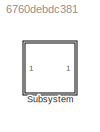
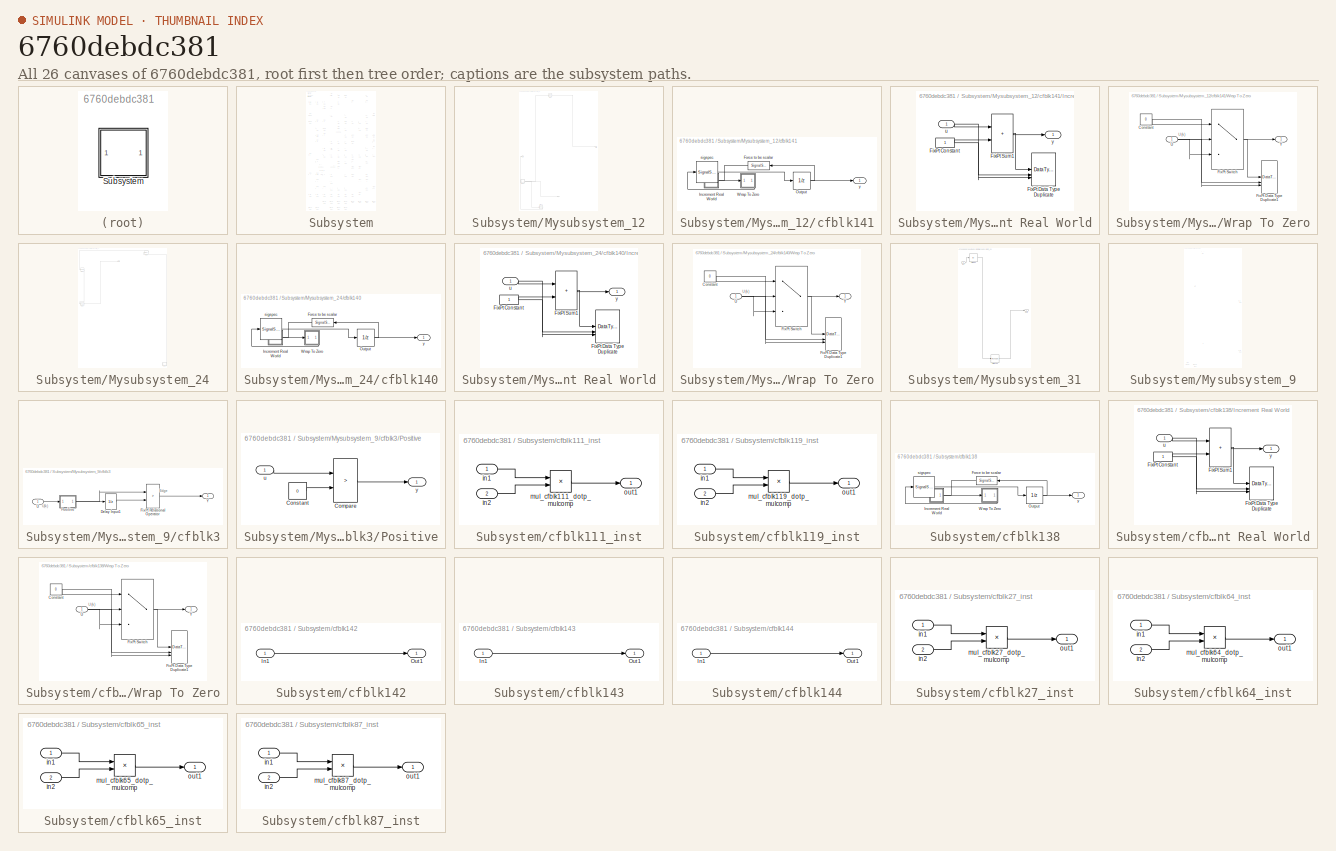
[diagram: thumbnail index - all 26 canvases of the model, root first then tree order]
MODEL slx_6760debdc381
KIND model
CONFIG AbsTol = auto
CONFIG EnableMultiTasking = off
CONFIG FixedStep = auto
CONFIG MaxStep = auto
CONFIG MinStep = auto
CONFIG RelTol = 1e-3
CONFIG SampleTimeConstraint = Unconstrained
CONFIG SolverName = VariableStepAuto
CONFIG StartTime = 0.0
CONFIG StopTime = 10.0
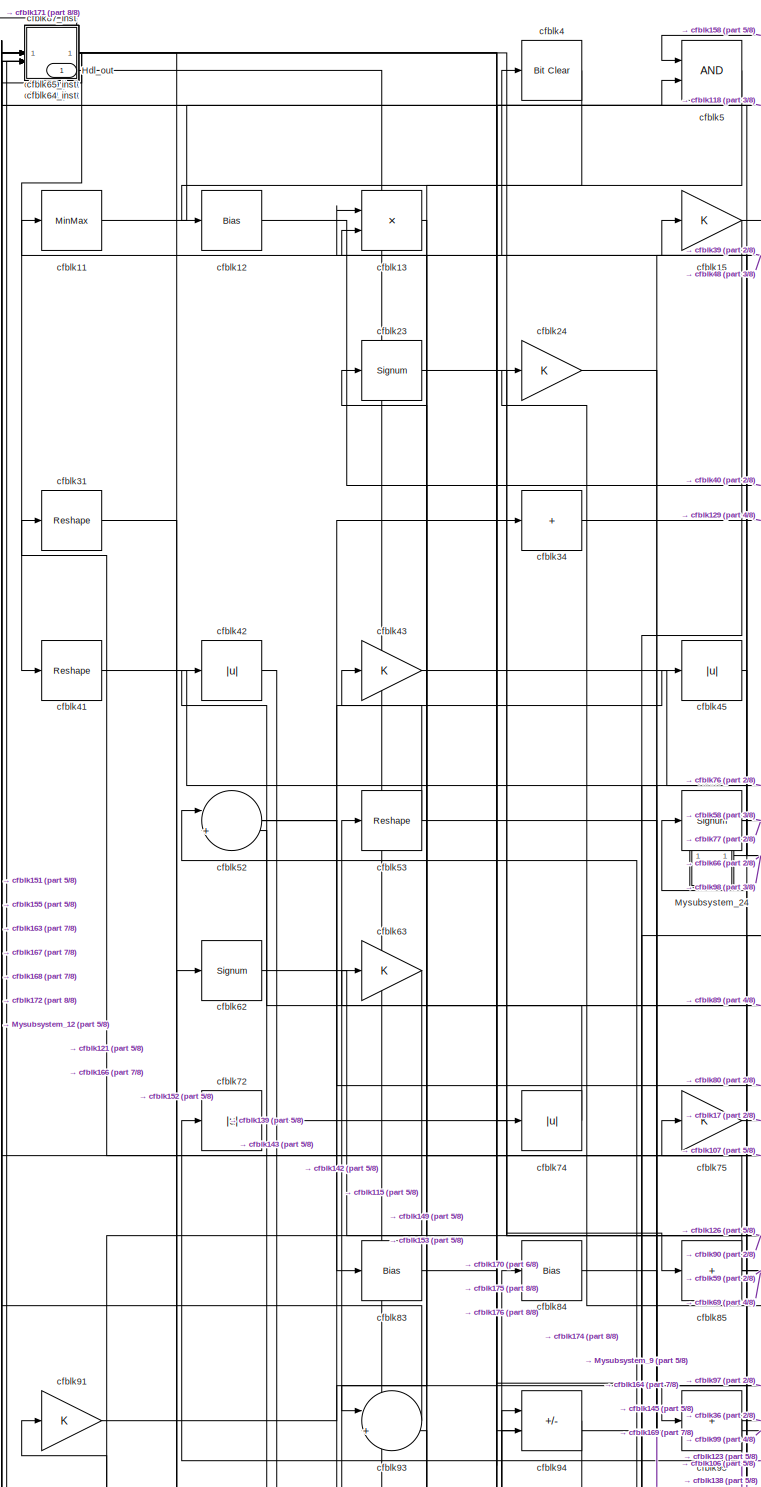
[diagram: Subsystem - part 1/8, top left region]
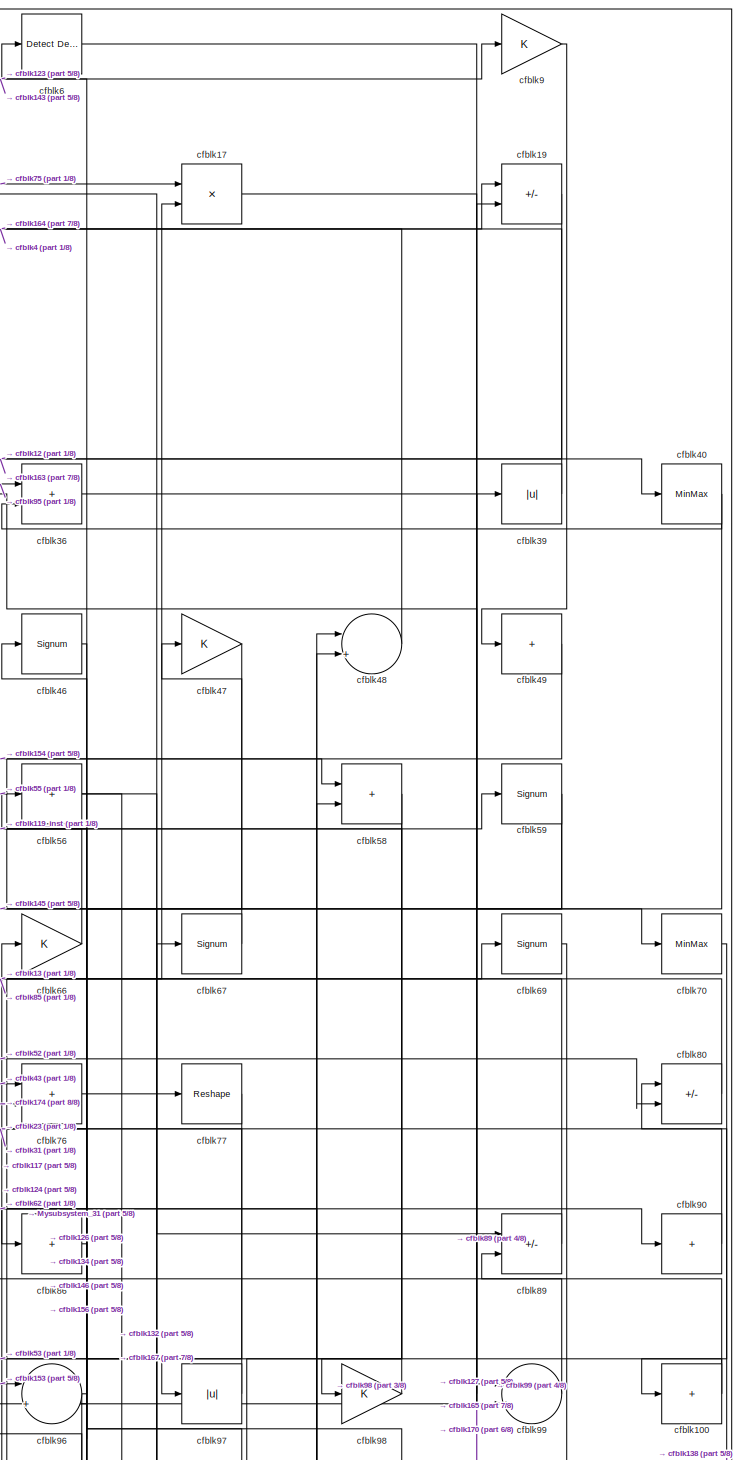
[diagram: Subsystem - part 2/8, top right region]
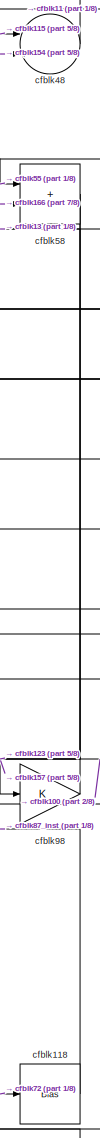
[diagram: Subsystem - part 3/8, middle right region]
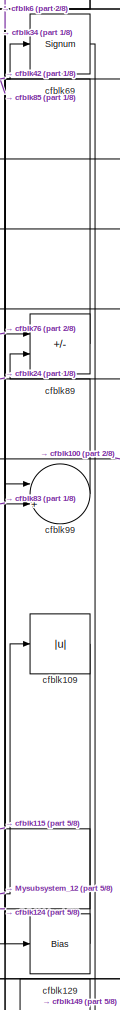
[diagram: Subsystem - part 4/8, middle right region]
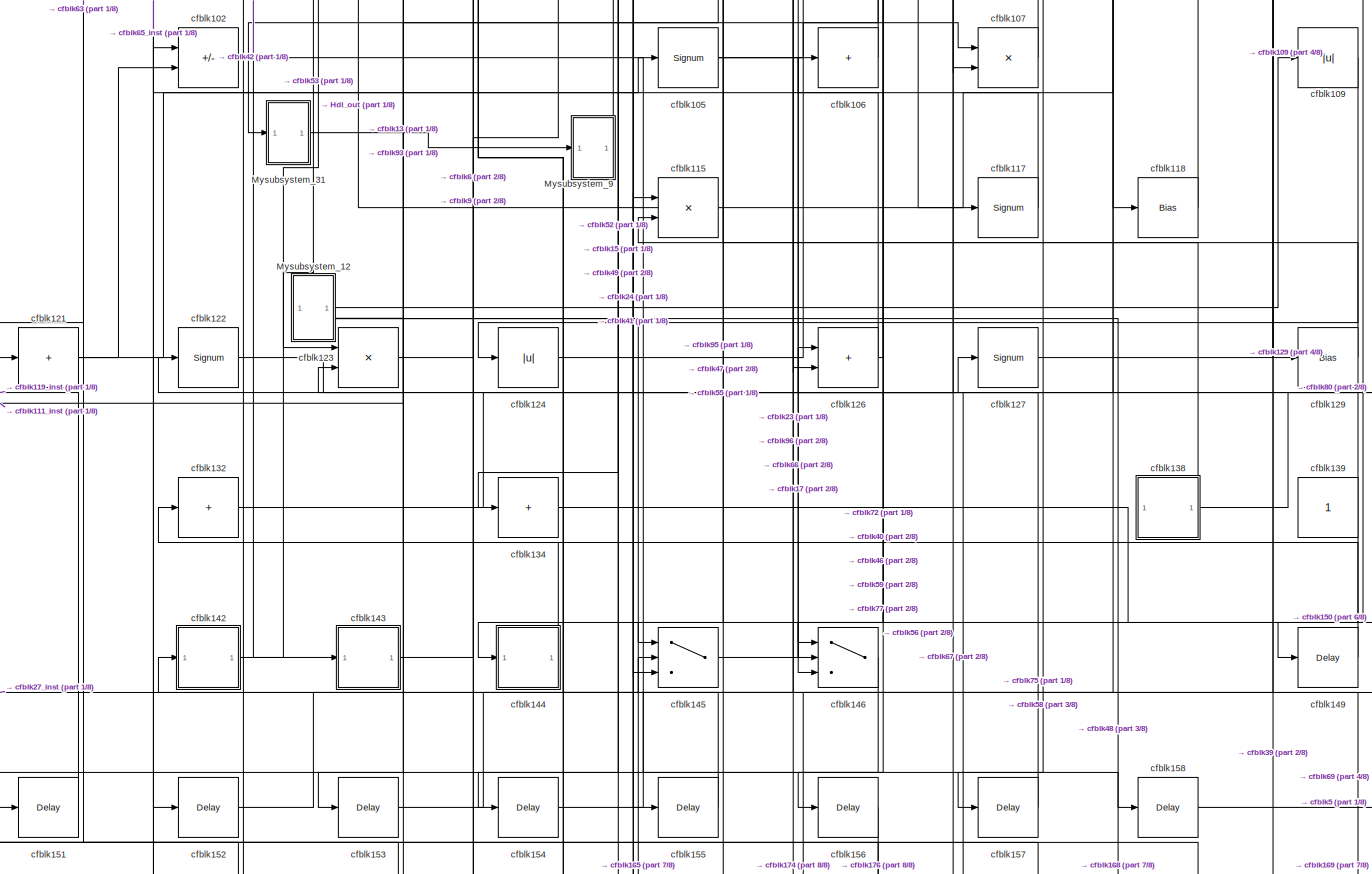
[diagram: Subsystem - part 5/8, full width, bottom band]
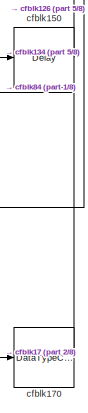
[diagram: Subsystem - part 6/8, bottom right region]
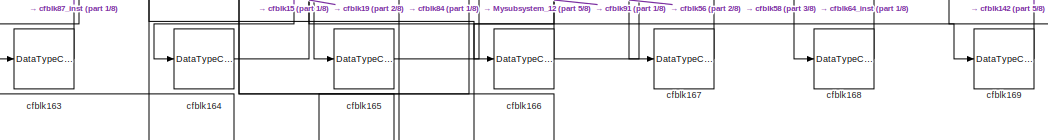
[diagram: Subsystem - part 7/8, bottom center region]
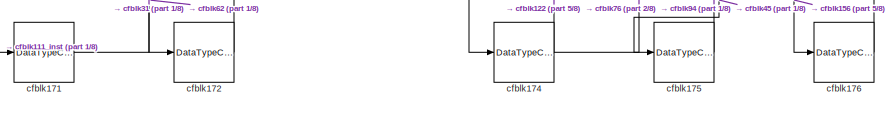
[diagram: Subsystem - part 8/8, bottom left region]
BLOCK [SubSystem] Subsystem
BLOCK [Outport] Subsystem/Hdl_out
  OutDataTypeStr = uint8
  SampleTime = 1
BLOCK [SubSystem] Subsystem/Mysubsystem_12
BLOCK [Outport] Subsystem/Mysubsystem_12/Out1
  SampleTime = 1
BLOCK [Outport] Subsystem/Mysubsystem_12/Out2
  Port = 2
  SampleTime = 1
BLOCK [SubSystem] Subsystem/Mysubsystem_12/cfblk141
BLOCK [SignalSpecification] Subsystem/Mysubsystem_12/cfblk141/Force to be scalar
  Dimensions = 1
  DisableCoverage = on
BLOCK [SubSystem] Subsystem/Mysubsystem_12/cfblk141/Increment Real World
BLOCK [Constant] Subsystem/Mysubsystem_12/cfblk141/Increment Real World/FixPt Constant
  DisableCoverage = on
  OutDataTypeStr = Inherit: Inherit via back propagation
  SampleTime = -1
BLOCK [DataTypeDuplicate] Subsystem/Mysubsystem_12/cfblk141/Increment Real World/FixPt Data Type Duplicate
  DisableCoverage = on
  NumInputPorts = 3
BLOCK [Sum] Subsystem/Mysubsystem_12/cfblk141/Increment Real World/FixPt Sum1
  IconShape = rectangular
  InputSameDT = on
  LockScale = on
  OutDataTypeStr = Inherit: Inherit via back propagation
BLOCK [Inport] Subsystem/Mysubsystem_12/cfblk141/Increment Real World/u
  OutDataTypeStr = uint16
  SampleTime = 1
BLOCK [Outport] Subsystem/Mysubsystem_12/cfblk141/Increment Real World/y
  SampleTime = 1
BLOCK [UnitDelay] Subsystem/Mysubsystem_12/cfblk141/Output
  HasFrameUpgradeWarning = on
  InitialCondition = 0.0
  SampleTime = tsamp
BLOCK [SubSystem] Subsystem/Mysubsystem_12/cfblk141/Wrap To Zero
BLOCK [Constant] Subsystem/Mysubsystem_12/cfblk141/Wrap To Zero/Constant
  DisableCoverage = on
  OutDataTypeStr = Inherit: Inherit via back propagation
  SampleTime = -1
  Value = 0
BLOCK [DataTypeDuplicate] Subsystem/Mysubsystem_12/cfblk141/Wrap To Zero/FixPt Data Type Duplicate1
  DisableCoverage = on
  NumInputPorts = 3
BLOCK [Switch] Subsystem/Mysubsystem_12/cfblk141/Wrap To Zero/FixPt Switch
  Criteria = u2 > Threshold
  InputSameDT = off
  OutDataTypeStr = Inherit: Inherit via back propagation
  SaturateOnIntegerOverflow = off
  Threshold = Threshold
  ZeroCross = off
BLOCK [Inport] Subsystem/Mysubsystem_12/cfblk141/Wrap To Zero/U
  OutDataTypeStr = uint16
  SampleTime = 1
BLOCK [Outport] Subsystem/Mysubsystem_12/cfblk141/Wrap To Zero/Y
  SampleTime = 1
BLOCK [SignalSpecification] Subsystem/Mysubsystem_12/cfblk141/sigspec
  Dimensions = 1
  OutDataTypeStr = uint16
BLOCK [Outport] Subsystem/Mysubsystem_12/cfblk141/y
  SampleTime = 1
BLOCK [DataTypeConversion] Subsystem/Mysubsystem_12/cfblk173
  OutDataTypeStr = uint8
  RndMeth = Floor
  SaturateOnIntegerOverflow = off
BLOCK [Signum] Subsystem/Mysubsystem_12/cfblk44
BLOCK [Outport] Subsystem/Mysubsystem_12/y
  Port = 3
  SampleTime = 1
BLOCK [SubSystem] Subsystem/Mysubsystem_24
BLOCK [Outport] Subsystem/Mysubsystem_24/Out1
  SampleTime = 1
BLOCK [SubSystem] Subsystem/Mysubsystem_24/cfblk140
BLOCK [SignalSpecification] Subsystem/Mysubsystem_24/cfblk140/Force to be scalar
  Dimensions = 1
  DisableCoverage = on
BLOCK [SubSystem] Subsystem/Mysubsystem_24/cfblk140/Increment Real World
BLOCK [Constant] Subsystem/Mysubsystem_24/cfblk140/Increment Real World/FixPt Constant
  DisableCoverage = on
  OutDataTypeStr = Inherit: Inherit via back propagation
  SampleTime = -1
BLOCK [DataTypeDuplicate] Subsystem/Mysubsystem_24/cfblk140/Increment Real World/FixPt Data Type Duplicate
  DisableCoverage = on
  NumInputPorts = 3
BLOCK [Sum] Subsystem/Mysubsystem_24/cfblk140/Increment Real World/FixPt Sum1
  IconShape = rectangular
  InputSameDT = on
  LockScale = on
  OutDataTypeStr = Inherit: Inherit via back propagation
BLOCK [Inport] Subsystem/Mysubsystem_24/cfblk140/Increment Real World/u
  OutDataTypeStr = uint16
  SampleTime = 1
BLOCK [Outport] Subsystem/Mysubsystem_24/cfblk140/Increment Real World/y
  SampleTime = 1
BLOCK [UnitDelay] Subsystem/Mysubsystem_24/cfblk140/Output
  HasFrameUpgradeWarning = on
  InitialCondition = 0.0
  SampleTime = tsamp
BLOCK [SubSystem] Subsystem/Mysubsystem_24/cfblk140/Wrap To Zero
BLOCK [Constant] Subsystem/Mysubsystem_24/cfblk140/Wrap To Zero/Constant
  DisableCoverage = on
  OutDataTypeStr = Inherit: Inherit via back propagation
  SampleTime = -1
  Value = 0
BLOCK [DataTypeDuplicate] Subsystem/Mysubsystem_24/cfblk140/Wrap To Zero/FixPt Data Type Duplicate1
  DisableCoverage = on
  NumInputPorts = 3
BLOCK [Switch] Subsystem/Mysubsystem_24/cfblk140/Wrap To Zero/FixPt Switch
  Criteria = u2 > Threshold
  InputSameDT = off
  OutDataTypeStr = Inherit: Inherit via back propagation
  SaturateOnIntegerOverflow = off
  Threshold = Threshold
  ZeroCross = off
BLOCK [Inport] Subsystem/Mysubsystem_24/cfblk140/Wrap To Zero/U
  OutDataTypeStr = uint16
  SampleTime = 1
BLOCK [Outport] Subsystem/Mysubsystem_24/cfblk140/Wrap To Zero/Y
  SampleTime = 1
BLOCK [SignalSpecification] Subsystem/Mysubsystem_24/cfblk140/sigspec
  Dimensions = 1
  OutDataTypeStr = uint16
BLOCK [Outport] Subsystem/Mysubsystem_24/cfblk140/y
  SampleTime = 1
BLOCK [Reshape] Subsystem/Mysubsystem_24/cfblk21
BLOCK [Reshape] Subsystem/Mysubsystem_24/cfblk61
BLOCK [Reference] Subsystem/Mysubsystem_24/cfblk8  REF=hdlsllib/Logic and Bit
Operations/Interval Test
  SourceBlock = hdlsllib/Logic and Bit\nOperations/Interval Test
  SourceType = Interval Test
BLOCK [SubSystem] Subsystem/Mysubsystem_31
BLOCK [Inport] Subsystem/Mysubsystem_31/In1
  OutDataTypeStr = uint8
  PortDimensions = 1
  SampleTime = 1
BLOCK [Outport] Subsystem/Mysubsystem_31/Out1
  SampleTime = 1
BLOCK [Reshape] Subsystem/Mysubsystem_31/cfblk133
BLOCK [Abs] Subsystem/Mysubsystem_31/cfblk82
  SaturateOnIntegerOverflow = off
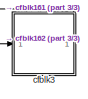
[diagram: Subsystem/Mysubsystem_9 - part 1/3, top left region]
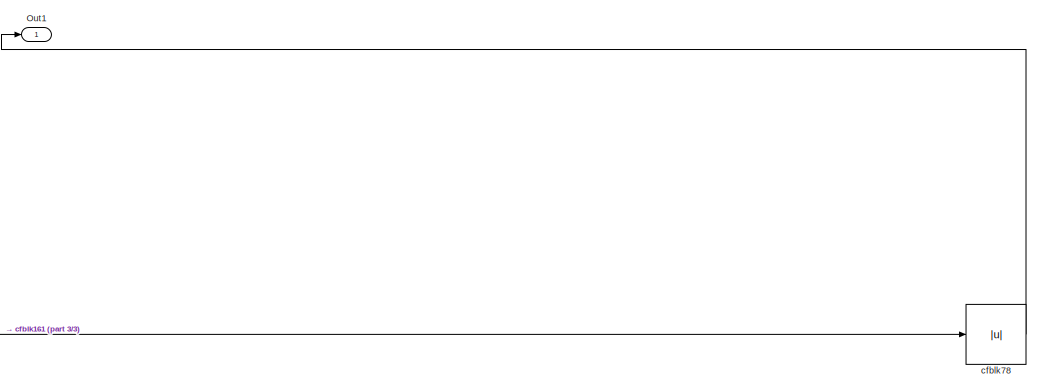
[diagram: Subsystem/Mysubsystem_9 - part 2/3, full width, middle band]
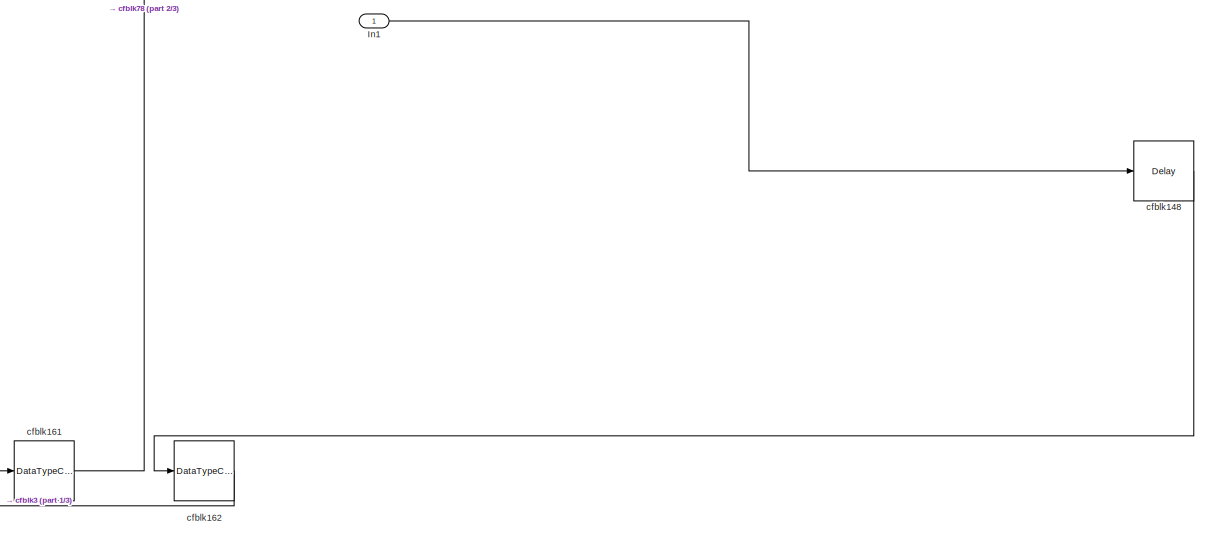
[diagram: Subsystem/Mysubsystem_9 - part 3/3, full width, bottom band]
BLOCK [SubSystem] Subsystem/Mysubsystem_9
BLOCK [Inport] Subsystem/Mysubsystem_9/In1
  OutDataTypeStr = uint8
  PortDimensions = 1
  SampleTime = 1
BLOCK [Outport] Subsystem/Mysubsystem_9/Out1
  SampleTime = 1
BLOCK [Delay] Subsystem/Mysubsystem_9/cfblk148
  InputPortMap = u0
  SampleTime = 1
BLOCK [DataTypeConversion] Subsystem/Mysubsystem_9/cfblk161
  OutDataTypeStr = uint8
  RndMeth = Floor
  SaturateOnIntegerOverflow = off
BLOCK [DataTypeConversion] Subsystem/Mysubsystem_9/cfblk162
  OutDataTypeStr = uint8
  RndMeth = Floor
  SaturateOnIntegerOverflow = off
BLOCK [SubSystem] Subsystem/Mysubsystem_9/cfblk3
BLOCK [UnitDelay] Subsystem/Mysubsystem_9/cfblk3/Delay Input1
  Description = Store in Global RAM
  DisableCoverage = on
  HasFrameUpgradeWarning = on
  InitialCondition = vinit
  SampleTime = -1
BLOCK [RelationalOperator] Subsystem/Mysubsystem_9/cfblk3/FixPt Relational Operator
  InputSameDT = off
  Operator = >
  OutDataTypeStr = boolean
  ZeroCross = off
BLOCK [SubSystem] Subsystem/Mysubsystem_9/cfblk3/Positive
BLOCK [RelationalOperator] Subsystem/Mysubsystem_9/cfblk3/Positive/Compare
  Operator = >
  OutDataTypeStr = boolean
  ZeroCross = off
BLOCK [Constant] Subsystem/Mysubsystem_9/cfblk3/Positive/Constant
  DisableCoverage = on
  OutDataTypeStr = Inherit: Inherit via back propagation
  PreserveConstantTs = on
  SampleTime = -1
  Value = 0
BLOCK [Inport] Subsystem/Mysubsystem_9/cfblk3/Positive/u
  OutDataTypeStr = uint8
  SampleTime = 1
BLOCK [Outport] Subsystem/Mysubsystem_9/cfblk3/Positive/y
  SampleTime = 1
BLOCK [Inport] Subsystem/Mysubsystem_9/cfblk3/U
  OutDataTypeStr = uint8
  SampleTime = 1
BLOCK [Outport] Subsystem/Mysubsystem_9/cfblk3/Y
  SampleTime = 1
BLOCK [Abs] Subsystem/Mysubsystem_9/cfblk78
  SaturateOnIntegerOverflow = off
BLOCK [Sum] Subsystem/cfblk100
  IconShape = rectangular
  Inputs = +
  OutDataTypeStr = uint8
BLOCK [Sum] Subsystem/cfblk102
  IconShape = rectangular
  Inputs = +-
  OutDataTypeStr = uint8
BLOCK [Signum] Subsystem/cfblk105
BLOCK [Sum] Subsystem/cfblk106
  IconShape = rectangular
  Inputs = +
  OutDataTypeStr = uint8
BLOCK [Product] Subsystem/cfblk107
  Inputs = */
  OutDataTypeStr = uint8
  RndMeth = Zero
  SaturateOnIntegerOverflow = on
BLOCK [Abs] Subsystem/cfblk109
  OutDataTypeStr = uint8
  SaturateOnIntegerOverflow = off
BLOCK [MinMax] Subsystem/cfblk11
  OutDataTypeStr = uint8
BLOCK [SubSystem] Subsystem/cfblk111_inst
BLOCK [Inport] Subsystem/cfblk111_inst/in1
  OutDataTypeStr = uint8
  SampleTime = 1
BLOCK [Inport] Subsystem/cfblk111_inst/in2
  OutDataTypeStr = uint8
  Port = 2
  SampleTime = 1
BLOCK [Product] Subsystem/cfblk111_inst/mul_cfblk111_dotp_mulcomp
  Inputs = **
  OutDataTypeStr = uint8
  SampleTime = 1
BLOCK [Outport] Subsystem/cfblk111_inst/out1
  OutDataTypeStr = uint8
  SampleTime = 1
BLOCK [Product] Subsystem/cfblk115
  Inputs = */
  OutDataTypeStr = uint8
  RndMeth = Zero
  SaturateOnIntegerOverflow = on
BLOCK [Signum] Subsystem/cfblk117
BLOCK [Bias] Subsystem/cfblk118
  Bias = 0.0
  SaturateOnIntegerOverflow = off
BLOCK [SubSystem] Subsystem/cfblk119_inst
BLOCK [Inport] Subsystem/cfblk119_inst/in1
  OutDataTypeStr = uint8
  SampleTime = 1
BLOCK [Inport] Subsystem/cfblk119_inst/in2
  OutDataTypeStr = uint8
  Port = 2
  SampleTime = 1
BLOCK [Product] Subsystem/cfblk119_inst/mul_cfblk119_dotp_mulcomp
  Inputs = **
  OutDataTypeStr = uint8
  SampleTime = 1
BLOCK [Outport] Subsystem/cfblk119_inst/out1
  OutDataTypeStr = uint8
  SampleTime = 1
BLOCK [Bias] Subsystem/cfblk12
  Bias = 0.0
  SaturateOnIntegerOverflow = off
BLOCK [Sum] Subsystem/cfblk121
  IconShape = rectangular
  Inputs = +
  OutDataTypeStr = uint8
BLOCK [Signum] Subsystem/cfblk122
BLOCK [Product] Subsystem/cfblk123
  Inputs = */
  OutDataTypeStr = uint8
  RndMeth = Zero
  SaturateOnIntegerOverflow = on
BLOCK [Abs] Subsystem/cfblk124
  OutDataTypeStr = uint8
  SaturateOnIntegerOverflow = off
BLOCK [Sum] Subsystem/cfblk126
  IconShape = rectangular
  OutDataTypeStr = uint8
BLOCK [Signum] Subsystem/cfblk127
BLOCK [Bias] Subsystem/cfblk129
  Bias = 0.0
  SaturateOnIntegerOverflow = off
BLOCK [Product] Subsystem/cfblk13
  Inputs = */
  OutDataTypeStr = uint8
  RndMeth = Zero
  SaturateOnIntegerOverflow = on
BLOCK [Sum] Subsystem/cfblk132
  IconShape = rectangular
  Inputs = +
  OutDataTypeStr = uint8
BLOCK [Sum] Subsystem/cfblk134
  IconShape = rectangular
  Inputs = +
  OutDataTypeStr = uint8
BLOCK [SubSystem] Subsystem/cfblk138
BLOCK [SignalSpecification] Subsystem/cfblk138/Force to be scalar
  Dimensions = 1
  DisableCoverage = on
BLOCK [SubSystem] Subsystem/cfblk138/Increment Real World
BLOCK [Constant] Subsystem/cfblk138/Increment Real World/FixPt Constant
  DisableCoverage = on
  OutDataTypeStr = Inherit: Inherit via back propagation
  SampleTime = -1
BLOCK [DataTypeDuplicate] Subsystem/cfblk138/Increment Real World/FixPt Data Type Duplicate
  DisableCoverage = on
  NumInputPorts = 3
BLOCK [Sum] Subsystem/cfblk138/Increment Real World/FixPt Sum1
  IconShape = rectangular
  InputSameDT = on
  LockScale = on
  OutDataTypeStr = Inherit: Inherit via back propagation
BLOCK [Inport] Subsystem/cfblk138/Increment Real World/u
  OutDataTypeStr = uint8
  SampleTime = 1
BLOCK [Outport] Subsystem/cfblk138/Increment Real World/y
  SampleTime = 1
BLOCK [UnitDelay] Subsystem/cfblk138/Output
  HasFrameUpgradeWarning = on
  InitialCondition = 0.0
  SampleTime = tsamp
BLOCK [SubSystem] Subsystem/cfblk138/Wrap To Zero
BLOCK [Constant] Subsystem/cfblk138/Wrap To Zero/Constant
  DisableCoverage = on
  OutDataTypeStr = Inherit: Inherit via back propagation
  SampleTime = -1
  Value = 0
BLOCK [DataTypeDuplicate] Subsystem/cfblk138/Wrap To Zero/FixPt Data Type Duplicate1
  DisableCoverage = on
  NumInputPorts = 3
BLOCK [Switch] Subsystem/cfblk138/Wrap To Zero/FixPt Switch
  Criteria = u2 > Threshold
  InputSameDT = off
  OutDataTypeStr = Inherit: Inherit via back propagation
  SaturateOnIntegerOverflow = off
  Threshold = Threshold
  ZeroCross = off
BLOCK [Inport] Subsystem/cfblk138/Wrap To Zero/U
  OutDataTypeStr = uint8
  SampleTime = 1
BLOCK [Outport] Subsystem/cfblk138/Wrap To Zero/Y
  SampleTime = 1
BLOCK [SignalSpecification] Subsystem/cfblk138/sigspec
  Dimensions = 1
  OutDataTypeStr = uint8
BLOCK [Outport] Subsystem/cfblk138/y
  SampleTime = 1
BLOCK [Constant] Subsystem/cfblk139
  OutDataTypeStr = uint8
  SampleTime = -1
BLOCK [SubSystem] Subsystem/cfblk142
BLOCK [Inport] Subsystem/cfblk142/In1
  OutDataTypeStr = uint8
  PortDimensions = 1
  SampleTime = 1
BLOCK [Outport] Subsystem/cfblk142/Out1
  SampleTime = 1
BLOCK [SubSystem] Subsystem/cfblk143
BLOCK [Inport] Subsystem/cfblk143/In1
  OutDataTypeStr = uint8
  PortDimensions = 1
  SampleTime = 1
BLOCK [Outport] Subsystem/cfblk143/Out1
  SampleTime = 1
BLOCK [SubSystem] Subsystem/cfblk144
BLOCK [Inport] Subsystem/cfblk144/In1
  OutDataTypeStr = uint8
  PortDimensions = 1
  SampleTime = 1
BLOCK [Outport] Subsystem/cfblk144/Out1
  SampleTime = 1
BLOCK [Switch] Subsystem/cfblk145
  InputSameDT = off
  OutDataTypeStr = uint8
  SaturateOnIntegerOverflow = off
BLOCK [Switch] Subsystem/cfblk146
  InputSameDT = off
  OutDataTypeStr = uint8
  SaturateOnIntegerOverflow = off
BLOCK [Delay] Subsystem/cfblk149
  InputPortMap = u0
  SampleTime = 1
BLOCK [Gain] Subsystem/cfblk15
  OutDataTypeStr = uint8
BLOCK [Delay] Subsystem/cfblk150
  InputPortMap = u0
  SampleTime = 1
BLOCK [Delay] Subsystem/cfblk151
  InputPortMap = u0
  SampleTime = 1
BLOCK [Delay] Subsystem/cfblk152
  InputPortMap = u0
  SampleTime = 1
BLOCK [Delay] Subsystem/cfblk153
  InputPortMap = u0
  SampleTime = 1
BLOCK [Delay] Subsystem/cfblk154
  InputPortMap = u0
  SampleTime = 1
BLOCK [Delay] Subsystem/cfblk155
  InputPortMap = u0
  SampleTime = 1
BLOCK [Delay] Subsystem/cfblk156
  InputPortMap = u0
  SampleTime = 1
BLOCK [Delay] Subsystem/cfblk157
  InputPortMap = u0
  SampleTime = 1
BLOCK [Delay] Subsystem/cfblk158
  InputPortMap = u0
  SampleTime = 1
BLOCK [DataTypeConversion] Subsystem/cfblk163
  OutDataTypeStr = uint8
  RndMeth = Floor
  SaturateOnIntegerOverflow = off
BLOCK [DataTypeConversion] Subsystem/cfblk164
  OutDataTypeStr = uint8
  RndMeth = Floor
  SaturateOnIntegerOverflow = off
BLOCK [DataTypeConversion] Subsystem/cfblk165
  OutDataTypeStr = uint8
  RndMeth = Floor
  SaturateOnIntegerOverflow = off
BLOCK [DataTypeConversion] Subsystem/cfblk166
  OutDataTypeStr = uint8
  RndMeth = Floor
  SaturateOnIntegerOverflow = off
BLOCK [DataTypeConversion] Subsystem/cfblk167
  OutDataTypeStr = uint8
  RndMeth = Floor
  SaturateOnIntegerOverflow = off
BLOCK [DataTypeConversion] Subsystem/cfblk168
  OutDataTypeStr = uint8
  RndMeth = Floor
  SaturateOnIntegerOverflow = off
BLOCK [DataTypeConversion] Subsystem/cfblk169
  OutDataTypeStr = uint8
  RndMeth = Floor
  SaturateOnIntegerOverflow = off
BLOCK [Product] Subsystem/cfblk17
  Inputs = */
  OutDataTypeStr = uint8
  RndMeth = Zero
  SaturateOnIntegerOverflow = on
BLOCK [DataTypeConversion] Subsystem/cfblk170
  OutDataTypeStr = uint8
  RndMeth = Floor
  SaturateOnIntegerOverflow = off
BLOCK [DataTypeConversion] Subsystem/cfblk171
  OutDataTypeStr = uint8
  RndMeth = Floor
  SaturateOnIntegerOverflow = off
BLOCK [DataTypeConversion] Subsystem/cfblk172
  OutDataTypeStr = uint8
  RndMeth = Floor
  SaturateOnIntegerOverflow = off
BLOCK [DataTypeConversion] Subsystem/cfblk174
  OutDataTypeStr = uint8
  RndMeth = Floor
  SaturateOnIntegerOverflow = off
BLOCK [DataTypeConversion] Subsystem/cfblk175
  OutDataTypeStr = uint8
  RndMeth = Floor
  SaturateOnIntegerOverflow = off
BLOCK [DataTypeConversion] Subsystem/cfblk176
  OutDataTypeStr = uint8
  RndMeth = Floor
  SaturateOnIntegerOverflow = off
BLOCK [Sum] Subsystem/cfblk19
  IconShape = rectangular
  Inputs = +-
  OutDataTypeStr = uint8
BLOCK [Signum] Subsystem/cfblk23
BLOCK [Gain] Subsystem/cfblk24
  OutDataTypeStr = uint8
BLOCK [SubSystem] Subsystem/cfblk27_inst
BLOCK [Inport] Subsystem/cfblk27_inst/in1
  OutDataTypeStr = uint8
  SampleTime = 1
BLOCK [Inport] Subsystem/cfblk27_inst/in2
  OutDataTypeStr = uint8
  Port = 2
  SampleTime = 1
BLOCK [Product] Subsystem/cfblk27_inst/mul_cfblk27_dotp_mulcomp
  Inputs = **
  OutDataTypeStr = uint8
  SampleTime = 1
BLOCK [Outport] Subsystem/cfblk27_inst/out1
  OutDataTypeStr = uint8
  SampleTime = 1
BLOCK [Reshape] Subsystem/cfblk31
BLOCK [Sum] Subsystem/cfblk34
  IconShape = rectangular
  Inputs = +
  OutDataTypeStr = uint8
BLOCK [Sum] Subsystem/cfblk36
  IconShape = rectangular
  OutDataTypeStr = uint8
BLOCK [Abs] Subsystem/cfblk39
  OutDataTypeStr = uint8
  SaturateOnIntegerOverflow = off
BLOCK [Reference] Subsystem/cfblk4  REF=simulink/Logic and Bit
Operations/Bit Clear
  LibrarySourceBlock = hdlsllib/Logic and Bit\nOperations/Bit Clear
  SourceBlock = simulink/Logic and Bit\nOperations/Bit Clear
  SourceType = Bit Clear
BLOCK [MinMax] Subsystem/cfblk40
  OutDataTypeStr = uint8
BLOCK [Reshape] Subsystem/cfblk41
BLOCK [Abs] Subsystem/cfblk42
  OutDataTypeStr = uint8
  SaturateOnIntegerOverflow = off
BLOCK [Gain] Subsystem/cfblk43
  OutDataTypeStr = uint8
BLOCK [Abs] Subsystem/cfblk45
  OutDataTypeStr = uint8
  SaturateOnIntegerOverflow = off
BLOCK [Signum] Subsystem/cfblk46
BLOCK [Gain] Subsystem/cfblk47
  OutDataTypeStr = uint8
BLOCK [Sum] Subsystem/cfblk48
  Inputs = |++
  OutDataTypeStr = uint8
BLOCK [Sum] Subsystem/cfblk49
  IconShape = rectangular
  Inputs = +
  OutDataTypeStr = uint8
BLOCK [Logic] Subsystem/cfblk5
  AllPortsSameDT = off
  OutDataTypeStr = boolean
BLOCK [Sum] Subsystem/cfblk52
  Inputs = |++
  OutDataTypeStr = uint8
BLOCK [Reshape] Subsystem/cfblk53
BLOCK [Signum] Subsystem/cfblk55
BLOCK [Sum] Subsystem/cfblk56
  IconShape = rectangular
  Inputs = +
  OutDataTypeStr = uint8
BLOCK [Sum] Subsystem/cfblk58
  IconShape = rectangular
  OutDataTypeStr = uint8
BLOCK [Signum] Subsystem/cfblk59
BLOCK [Reference] Subsystem/cfblk6  REF=simulink/Logic and Bit
Operations/Detect
Decrease
  LibrarySourceBlock = hdlsllib/Logic and Bit\nOperations/Detect\nDecrease
  SourceBlock = simulink/Logic and Bit\nOperations/Detect\nDecrease
  SourceType = Detect Decrease
BLOCK [Signum] Subsystem/cfblk62
BLOCK [Gain] Subsystem/cfblk63
  OutDataTypeStr = uint8
BLOCK [SubSystem] Subsystem/cfblk64_inst
BLOCK [Inport] Subsystem/cfblk64_inst/in1
  OutDataTypeStr = uint8
  SampleTime = 1
BLOCK [Inport] Subsystem/cfblk64_inst/in2
  OutDataTypeStr = uint8
  Port = 2
  SampleTime = 1
BLOCK [Product] Subsystem/cfblk64_inst/mul_cfblk64_dotp_mulcomp
  Inputs = **
  OutDataTypeStr = uint8
  SampleTime = 1
BLOCK [Outport] Subsystem/cfblk64_inst/out1
  OutDataTypeStr = uint8
  SampleTime = 1
BLOCK [SubSystem] Subsystem/cfblk65_inst
BLOCK [Inport] Subsystem/cfblk65_inst/in1
  OutDataTypeStr = uint8
  SampleTime = 1
BLOCK [Inport] Subsystem/cfblk65_inst/in2
  OutDataTypeStr = uint8
  Port = 2
  SampleTime = 1
BLOCK [Product] Subsystem/cfblk65_inst/mul_cfblk65_dotp_mulcomp
  Inputs = **
  OutDataTypeStr = uint8
  SampleTime = 1
BLOCK [Outport] Subsystem/cfblk65_inst/out1
  OutDataTypeStr = uint8
  SampleTime = 1
BLOCK [Gain] Subsystem/cfblk66
  OutDataTypeStr = uint8
BLOCK [Signum] Subsystem/cfblk67
BLOCK [Signum] Subsystem/cfblk69
BLOCK [MinMax] Subsystem/cfblk70
  OutDataTypeStr = uint8
BLOCK [Abs] Subsystem/cfblk72
  OutDataTypeStr = uint8
  SaturateOnIntegerOverflow = off
BLOCK [Abs] Subsystem/cfblk74
  OutDataTypeStr = uint8
  SaturateOnIntegerOverflow = off
BLOCK [Gain] Subsystem/cfblk75
  OutDataTypeStr = uint8
BLOCK [Sum] Subsystem/cfblk76
  IconShape = rectangular
  OutDataTypeStr = uint8
BLOCK [Reshape] Subsystem/cfblk77
BLOCK [Sum] Subsystem/cfblk80
  IconShape = rectangular
  Inputs = +-
  OutDataTypeStr = uint8
BLOCK [Bias] Subsystem/cfblk83
  Bias = 0.0
  SaturateOnIntegerOverflow = off
BLOCK [Bias] Subsystem/cfblk84
  Bias = 0.0
  SaturateOnIntegerOverflow = off
BLOCK [Sum] Subsystem/cfblk85
  IconShape = rectangular
  Inputs = +
  OutDataTypeStr = uint8
BLOCK [Sum] Subsystem/cfblk86
  IconShape = rectangular
  Inputs = +
  OutDataTypeStr = uint8
BLOCK [SubSystem] Subsystem/cfblk87_inst
BLOCK [Inport] Subsystem/cfblk87_inst/in1
  OutDataTypeStr = uint8
  SampleTime = 1
BLOCK [Inport] Subsystem/cfblk87_inst/in2
  OutDataTypeStr = uint8
  Port = 2
  SampleTime = 1
BLOCK [Product] Subsystem/cfblk87_inst/mul_cfblk87_dotp_mulcomp
  Inputs = **
  OutDataTypeStr = uint8
  SampleTime = 1
BLOCK [Outport] Subsystem/cfblk87_inst/out1
  OutDataTypeStr = uint8
  SampleTime = 1
BLOCK [Sum] Subsystem/cfblk89
  IconShape = rectangular
  Inputs = +-
  OutDataTypeStr = uint8
BLOCK [Gain] Subsystem/cfblk9
  OutDataTypeStr = uint8
BLOCK [Sum] Subsystem/cfblk90
  IconShape = rectangular
  Inputs = +
  OutDataTypeStr = uint8
BLOCK [Gain] Subsystem/cfblk91
  OutDataTypeStr = uint8
BLOCK [Sum] Subsystem/cfblk93
  Inputs = |++
  OutDataTypeStr = uint8
BLOCK [Sum] Subsystem/cfblk94
  IconShape = rectangular
  Inputs = +-
  OutDataTypeStr = uint8
BLOCK [Sum] Subsystem/cfblk95
  IconShape = rectangular
  Inputs = +
  OutDataTypeStr = uint8
BLOCK [Sum] Subsystem/cfblk96
  Inputs = |++
  OutDataTypeStr = uint8
BLOCK [Abs] Subsystem/cfblk97
  OutDataTypeStr = uint8
  SaturateOnIntegerOverflow = off
BLOCK [Gain] Subsystem/cfblk98
  OutDataTypeStr = uint8
BLOCK [Sum] Subsystem/cfblk99
  Inputs = |++
  OutDataTypeStr = uint8
ANNOTATION Subsystem/Mysubsystem_12/cfblk141/Wrap To Zero: U(k)
ANNOTATION Subsystem/Mysubsystem_24/cfblk140/Wrap To Zero: U(k)
ANNOTATION Subsystem/Mysubsystem_9/cfblk3: Edge
ANNOTATION Subsystem/Mysubsystem_9/cfblk3: U(k)
ANNOTATION Subsystem/cfblk138/Wrap To Zero: U(k)
NET Subsystem/Mysubsystem_12/cfblk141:1 -> Subsystem/Mysubsystem_12/cfblk173:1, Subsystem/Mysubsystem_12/cfblk44:1, Subsystem/Mysubsystem_12/y:1
LINE Subsystem/Mysubsystem_12/cfblk173:1 -> Subsystem/Mysubsystem_12/Out2:1
LINE Subsystem/Mysubsystem_12/cfblk44:1 -> Subsystem/Mysubsystem_12/Out1:1
LINE Subsystem/Mysubsystem_12:1 -> Subsystem/cfblk109:1
LINE Subsystem/Mysubsystem_12:2 -> Subsystem/cfblk111_inst:2
NET Subsystem/Mysubsystem_12:3 -> Subsystem/cfblk165:1, Subsystem/cfblk168:1
LINE Subsystem/Mysubsystem_24/cfblk140:1 -> Subsystem/Mysubsystem_24/cfblk8:1
LINE Subsystem/Mysubsystem_24/cfblk21:1 -> Subsystem/Mysubsystem_24/cfblk61:1
LINE Subsystem/Mysubsystem_24/cfblk61:1 -> Subsystem/Mysubsystem_24/Out1:1
LINE Subsystem/Mysubsystem_24/cfblk8:1 -> Subsystem/Mysubsystem_24/cfblk21:1
LINE Subsystem/Mysubsystem_24:1 -> Subsystem/cfblk15:1
LINE Subsystem/Mysubsystem_31/In1:1 -> Subsystem/Mysubsystem_31/cfblk82:1
LINE Subsystem/Mysubsystem_31/cfblk133:1 -> Subsystem/Mysubsystem_31/Out1:1
LINE Subsystem/Mysubsystem_31/cfblk82:1 -> Subsystem/Mysubsystem_31/cfblk133:1
LINE Subsystem/Mysubsystem_31:1 -> Subsystem/Mysubsystem_9:1
LINE Subsystem/Mysubsystem_9/In1:1 -> Subsystem/Mysubsystem_9/cfblk148:1
LINE Subsystem/Mysubsystem_9/cfblk148:1 -> Subsystem/Mysubsystem_9/cfblk162:1
LINE Subsystem/Mysubsystem_9/cfblk161:1 -> Subsystem/Mysubsystem_9/cfblk78:1
LINE Subsystem/Mysubsystem_9/cfblk162:1 -> Subsystem/Mysubsystem_9/cfblk3:1
LINE Subsystem/Mysubsystem_9/cfblk3:1 -> Subsystem/Mysubsystem_9/cfblk161:1
LINE Subsystem/Mysubsystem_9/cfblk78:1 -> Subsystem/Mysubsystem_9/Out1:1
LINE Subsystem/Mysubsystem_9:1 -> Subsystem/cfblk52:1
NET Subsystem/cfblk100:1 -> Subsystem/cfblk89:2, Subsystem/cfblk98:1
LINE Subsystem/cfblk102:1 -> Subsystem/cfblk158:1
NET Subsystem/cfblk105:1 -> Subsystem/cfblk107:1, Subsystem/cfblk146:3
LINE Subsystem/cfblk106:1 -> Subsystem/cfblk72:1
LINE Subsystem/cfblk107:1 -> Subsystem/cfblk75:1
LINE Subsystem/cfblk109:1 -> Subsystem/cfblk124:1
LINE Subsystem/cfblk111_inst/in1:1 -> Subsystem/cfblk111_inst/mul_cfblk111_dotp_mulcomp:1
LINE Subsystem/cfblk111_inst/in2:1 -> Subsystem/cfblk111_inst/mul_cfblk111_dotp_mulcomp:2
LINE Subsystem/cfblk111_inst/mul_cfblk111_dotp_mulcomp:1 -> Subsystem/cfblk111_inst/out1:1
LINE Subsystem/cfblk111_inst:1 -> Subsystem/cfblk171:1
NET Subsystem/cfblk115:1 -> Subsystem/Hdl_out:1, Subsystem/cfblk48:1
LINE Subsystem/cfblk117:1 -> Subsystem/cfblk66:1
LINE Subsystem/cfblk118:1 -> Subsystem/cfblk87_inst:1
LINE Subsystem/cfblk119_inst/in1:1 -> Subsystem/cfblk119_inst/mul_cfblk119_dotp_mulcomp:1
LINE Subsystem/cfblk119_inst/in2:1 -> Subsystem/cfblk119_inst/mul_cfblk119_dotp_mulcomp:2
LINE Subsystem/cfblk119_inst/mul_cfblk119_dotp_mulcomp:1 -> Subsystem/cfblk119_inst/out1:1
LINE Subsystem/cfblk119_inst:1 -> Subsystem/cfblk85:1
LINE Subsystem/cfblk11:1 -> Subsystem/cfblk5:2
NET Subsystem/cfblk121:1 -> Subsystem/cfblk102:2, Subsystem/cfblk105:1
LINE Subsystem/cfblk122:1 -> Subsystem/cfblk127:1
LINE Subsystem/cfblk123:1 -> Subsystem/cfblk6:1
LINE Subsystem/cfblk124:1 -> Subsystem/cfblk17:2
NET Subsystem/cfblk126:1 -> Subsystem/cfblk102:1, Subsystem/cfblk46:1
LINE Subsystem/cfblk127:1 -> Subsystem/cfblk39:1
LINE Subsystem/cfblk129:1 -> Subsystem/cfblk115:2
LINE Subsystem/cfblk12:1 -> Subsystem/cfblk40:1
LINE Subsystem/cfblk132:1 -> Subsystem/cfblk67:1
LINE Subsystem/cfblk134:1 -> Subsystem/cfblk150:1
NET Subsystem/cfblk138:1 -> Subsystem/cfblk55:1, Subsystem/cfblk80:1
NET Subsystem/cfblk139:1 -> Subsystem/cfblk144:1, Subsystem/cfblk52:2
LINE Subsystem/cfblk13:1 -> Subsystem/cfblk153:1
LINE Subsystem/cfblk142/In1:1 -> Subsystem/cfblk142/Out1:1
LINE Subsystem/cfblk142:1 -> Subsystem/cfblk53:1
LINE Subsystem/cfblk143/In1:1 -> Subsystem/cfblk143/Out1:1
LINE Subsystem/cfblk143:1 -> Subsystem/cfblk9:1
LINE Subsystem/cfblk144/In1:1 -> Subsystem/cfblk144/Out1:1
LINE Subsystem/cfblk144:1 -> Subsystem/cfblk132:1
LINE Subsystem/cfblk145:1 -> Subsystem/cfblk106:1
LINE Subsystem/cfblk146:1 -> Subsystem/cfblk151:1
LINE Subsystem/cfblk149:1 -> Subsystem/cfblk93:2
LINE Subsystem/cfblk150:1 -> Subsystem/cfblk126:1
LINE Subsystem/cfblk151:1 -> Subsystem/cfblk119_inst:2
LINE Subsystem/cfblk152:1 -> Subsystem/cfblk145:2
LINE Subsystem/cfblk153:1 -> Subsystem/cfblk96:1
LINE Subsystem/cfblk154:1 -> Subsystem/cfblk48:2
LINE Subsystem/cfblk155:1 -> Subsystem/cfblk27_inst:1
LINE Subsystem/cfblk156:1 -> Subsystem/cfblk176:1
LINE Subsystem/cfblk157:1 -> Subsystem/cfblk115:1
LINE Subsystem/cfblk158:1 -> Subsystem/cfblk5:1
NET Subsystem/cfblk15:1 -> Subsystem/cfblk107:2, Subsystem/cfblk164:1
LINE Subsystem/cfblk163:1 -> Subsystem/cfblk87_inst:2
LINE Subsystem/cfblk164:1 -> Subsystem/cfblk19:1
LINE Subsystem/cfblk165:1 -> Subsystem/cfblk19:2
NET Subsystem/cfblk166:1 -> Subsystem/cfblk58:2, Subsystem/cfblk91:1
LINE Subsystem/cfblk167:1 -> Subsystem/cfblk64_inst:1
LINE Subsystem/cfblk168:1 -> Subsystem/cfblk64_inst:2
LINE Subsystem/cfblk169:1 -> Subsystem/cfblk142:1
LINE Subsystem/cfblk170:1 -> Subsystem/cfblk84:1
LINE Subsystem/cfblk171:1 -> Subsystem/cfblk62:1
LINE Subsystem/cfblk172:1 -> Subsystem/cfblk111_inst:1
NET Subsystem/cfblk174:1 -> Subsystem/cfblk122:1, Subsystem/cfblk76:2
LINE Subsystem/cfblk175:1 -> Subsystem/cfblk94:1
LINE Subsystem/cfblk176:1 -> Subsystem/cfblk94:2
LINE Subsystem/cfblk17:1 -> Subsystem/cfblk170:1
LINE Subsystem/cfblk19:1 -> Subsystem/cfblk163:1
LINE Subsystem/cfblk23:1 -> Subsystem/cfblk126:2
LINE Subsystem/cfblk24:1 -> Subsystem/cfblk155:1
LINE Subsystem/cfblk27_inst/in1:1 -> Subsystem/cfblk27_inst/mul_cfblk27_dotp_mulcomp:1
LINE Subsystem/cfblk27_inst/in2:1 -> Subsystem/cfblk27_inst/mul_cfblk27_dotp_mulcomp:2
LINE Subsystem/cfblk27_inst/mul_cfblk27_dotp_mulcomp:1 -> Subsystem/cfblk27_inst/out1:1
NET Subsystem/cfblk27_inst:1 -> Subsystem/cfblk41:1, Subsystem/cfblk65_inst:2
LINE Subsystem/cfblk31:1 -> Subsystem/cfblk172:1
LINE Subsystem/cfblk34:1 -> Subsystem/cfblk129:1
LINE Subsystem/cfblk36:1 -> Subsystem/cfblk70:1
LINE Subsystem/cfblk39:1 -> Subsystem/cfblk4:1
NET Subsystem/cfblk40:1 -> Subsystem/cfblk156:1, Subsystem/cfblk36:2
LINE Subsystem/cfblk41:1 -> Subsystem/cfblk145:3
LINE Subsystem/cfblk42:1 -> Subsystem/cfblk143:1
LINE Subsystem/cfblk43:1 -> Subsystem/cfblk76:1
LINE Subsystem/cfblk45:1 -> Subsystem/cfblk175:1
LINE Subsystem/cfblk46:1 -> Subsystem/cfblk86:1
LINE Subsystem/cfblk47:1 -> Subsystem/cfblk145:1
LINE Subsystem/cfblk48:1 -> Subsystem/cfblk11:1
LINE Subsystem/cfblk49:1 -> Subsystem/cfblk154:1
LINE Subsystem/cfblk4:1 -> Subsystem/cfblk12:1
NET Subsystem/cfblk52:1 -> Subsystem/cfblk34:1, Subsystem/cfblk80:2, Subsystem/cfblk83:1
NET Subsystem/cfblk53:1 -> Subsystem/cfblk43:1, Subsystem/cfblk97:1
NET Subsystem/cfblk55:1 -> Subsystem/cfblk58:1, Subsystem/cfblk77:1
NET Subsystem/cfblk56:1 -> Subsystem/cfblk117:1, Subsystem/cfblk167:1
NET Subsystem/cfblk58:1 -> Subsystem/cfblk123:1, Subsystem/cfblk157:1
NET Subsystem/cfblk59:1 -> Subsystem/cfblk134:1, Subsystem/cfblk146:2
LINE Subsystem/cfblk5:1 -> Subsystem/cfblk93:1
LINE Subsystem/cfblk62:1 -> Subsystem/cfblk90:1
LINE Subsystem/cfblk63:1 -> Subsystem/cfblk121:1
LINE Subsystem/cfblk64_inst/in1:1 -> Subsystem/cfblk64_inst/mul_cfblk64_dotp_mulcomp:1
LINE Subsystem/cfblk64_inst/in2:1 -> Subsystem/cfblk64_inst/mul_cfblk64_dotp_mulcomp:2
LINE Subsystem/cfblk64_inst/mul_cfblk64_dotp_mulcomp:1 -> Subsystem/cfblk64_inst/out1:1
LINE Subsystem/cfblk64_inst:1 -> Subsystem/cfblk166:1
LINE Subsystem/cfblk65_inst/in1:1 -> Subsystem/cfblk65_inst/mul_cfblk65_dotp_mulcomp:1
LINE Subsystem/cfblk65_inst/in2:1 -> Subsystem/cfblk65_inst/mul_cfblk65_dotp_mulcomp:2
LINE Subsystem/cfblk65_inst/mul_cfblk65_dotp_mulcomp:1 -> Subsystem/cfblk65_inst/out1:1
NET Subsystem/cfblk65_inst:1 -> Subsystem/cfblk152:1, Subsystem/cfblk95:1
LINE Subsystem/cfblk66:1 -> Subsystem/cfblk119_inst:1
LINE Subsystem/cfblk67:1 -> Subsystem/cfblk47:1
LINE Subsystem/cfblk69:1 -> Subsystem/cfblk149:1
LINE Subsystem/cfblk6:1 -> Subsystem/cfblk99:1
LINE Subsystem/cfblk70:1 -> Subsystem/cfblk100:1
LINE Subsystem/cfblk72:1 -> Subsystem/cfblk118:1
LINE Subsystem/cfblk74:1 -> Subsystem/cfblk63:1
LINE Subsystem/cfblk75:1 -> Subsystem/cfblk17:1
LINE Subsystem/cfblk76:1 -> Subsystem/cfblk89:1
LINE Subsystem/cfblk77:1 -> Subsystem/cfblk146:1
LINE Subsystem/cfblk80:1 -> Subsystem/cfblk13:2
LINE Subsystem/cfblk83:1 -> Subsystem/cfblk99:2
LINE Subsystem/cfblk84:1 -> Subsystem/cfblk169:1
NET Subsystem/cfblk85:1 -> Subsystem/cfblk59:1, Subsystem/cfblk65_inst:1, Subsystem/cfblk69:1
LINE Subsystem/cfblk86:1 -> Subsystem/cfblk96:2
LINE Subsystem/cfblk87_inst/in1:1 -> Subsystem/cfblk87_inst/mul_cfblk87_dotp_mulcomp:1
LINE Subsystem/cfblk87_inst/in2:1 -> Subsystem/cfblk87_inst/mul_cfblk87_dotp_mulcomp:2
LINE Subsystem/cfblk87_inst/mul_cfblk87_dotp_mulcomp:1 -> Subsystem/cfblk87_inst/out1:1
LINE Subsystem/cfblk87_inst:1 -> Subsystem/cfblk74:1
LINE Subsystem/cfblk89:1 -> Subsystem/cfblk42:1
LINE Subsystem/cfblk90:1 -> Subsystem/cfblk23:1
LINE Subsystem/cfblk91:1 -> Subsystem/cfblk45:1
LINE Subsystem/cfblk93:1 -> Subsystem/cfblk27_inst:2
LINE Subsystem/cfblk94:1 -> Subsystem/cfblk174:1
NET Subsystem/cfblk95:1 -> Subsystem/cfblk123:2, Subsystem/cfblk36:1
NET Subsystem/cfblk96:1 -> Subsystem/Mysubsystem_31:1, Subsystem/cfblk56:1
LINE Subsystem/cfblk97:1 -> Subsystem/cfblk31:1
LINE Subsystem/cfblk98:1 -> Subsystem/cfblk13:1
LINE Subsystem/cfblk99:1 -> Subsystem/cfblk24:1
LINE Subsystem/cfblk9:1 -> Subsystem/cfblk49:1
note: NET lines group one-source signal fan-out (src -> all destinations, sorted); 1:1 wires keep LINE
